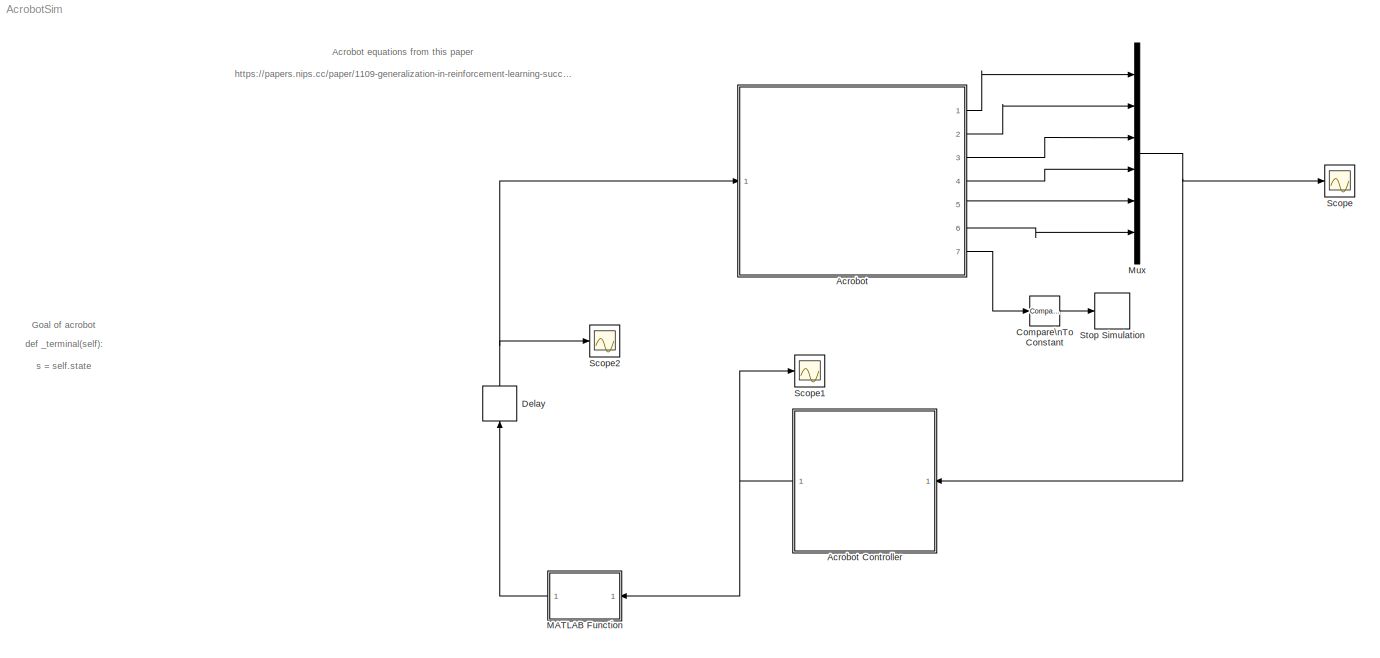
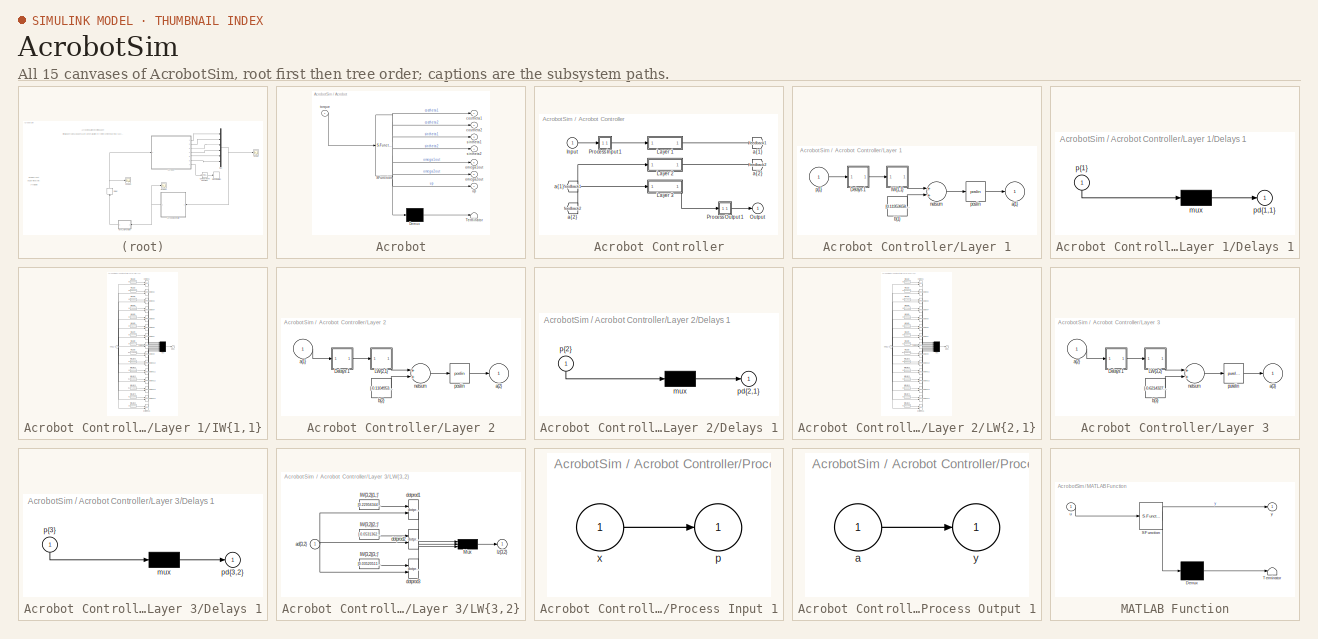
[diagram: thumbnail index - all 15 canvases of the model, root first then tree order]
MODEL AcrobotSim
KIND model
BLOCK [SubSystem] Acrobot
  ErrorFcn = Stateflow.Translate.translate
  PermitHierarchicalResolution = ExplicitOnly
  Ports = [1, 7]
  RequestExecContextInheritance = off
  SFBlockType = Chart
  SID = 269
  TreatAsAtomicUnit = on
BLOCK [SubSystem] Acrobot Controller
  Ports = [1, 1]
  RequestExecContextInheritance = off
  SID = 141
BLOCK [From] Acrobot Controller/ a{1} 
  GotoTag = feedback1
  SID = 143
BLOCK [From] Acrobot Controller/ a{2} 
  GotoTag = feedback2
  SID = 144
BLOCK [Inport] Acrobot Controller/Input
  IconDisplay = Port number
  PortDimensions = 6
  SID = 142
BLOCK [SubSystem] Acrobot Controller/Layer 1
  Ports = [1, 1]
  RequestExecContextInheritance = off
  SID = 145
BLOCK [SubSystem] Acrobot Controller/Layer 1/Delays 1
  Ports = [1, 1]
  RequestExecContextInheritance = off
  SID = 147
BLOCK [Mux] Acrobot Controller/Layer 1/Delays 1/mux
  Inputs = 1
  Ports = [1, 1]
  SID = 149
BLOCK [Outport] Acrobot Controller/Layer 1/Delays 1/pd{1,1}
  IconDisplay = Port number
  SID = 150
BLOCK [Inport] Acrobot Controller/Layer 1/Delays 1/p{1}
  IconDisplay = Port number
  PortDimensions = 6
  SID = 148
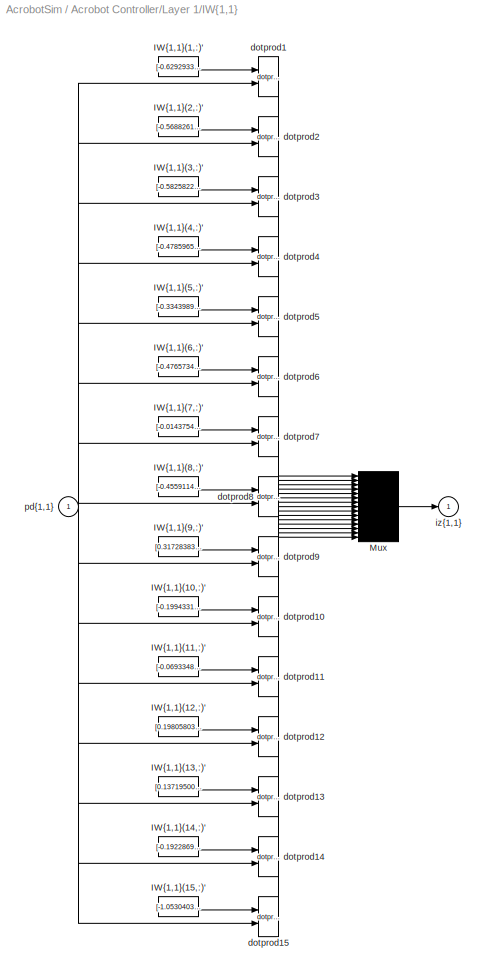
BLOCK [SubSystem] Acrobot Controller/Layer 1/IW{1,1}
  Ports = [1, 1]
  RequestExecContextInheritance = off
  SID = 151
BLOCK [Constant] Acrobot Controller/Layer 1/IW{1,1}/IW{1,1}(1,:)'
  SID = 153
  Value = [-0.629293382167816162109375;0.267541229724884033203125;0.3269827663898468017578125;0.368597507476806640625;0.6109702587127685546875;0.458549916744232177734375]
BLOCK [Constant] Acrobot Controller/Layer 1/IW{1,1}/IW{1,1}(10,:)'
  SID = 154
  Value = [-0.1994331777095794677734375;-0.34238779544830322265625;-0.581617057323455810546875;-0.17035122215747833251953125;0.3872416019439697265625;0.316810667514801025390625]
BLOCK [Constant] Acrobot Controller/Layer 1/IW{1,1}/IW{1,1}(11,:)'
  SID = 155
  Value = [-0.069334827363491058349609375;0.1552861630916595458984375;-0.327745258808135986328125;-0.085925109684467315673828125;-0.556157410144805908203125;-0.258438408374786376953125]
BLOCK [Constant] Acrobot Controller/Layer 1/IW{1,1}/IW{1,1}(12,:)'
  SID = 156
  Value = [0.1980580389499664306640625;-0.48474085330963134765625;-0.24772338569164276123046875;-0.22235150635242462158203125;-0.21169258654117584228515625;-0.15758176147937774658203125]
BLOCK [Constant] Acrobot Controller/Layer 1/IW{1,1}/IW{1,1}(13,:)'
  SID = 157
  Value = [0.13719500601291656494140625;0.339969813823699951171875;-0.4135355055332183837890625;-0.2197802364826202392578125;-0.2786084115505218505859375;-0.19249911606311798095703125]
BLOCK [Constant] Acrobot Controller/Layer 1/IW{1,1}/IW{1,1}(14,:)'
  SID = 158
  Value = [-0.192286908626556396484375;-0.3834297657012939453125;-0.202968060970306396484375;-0.4230518043041229248046875;-0.12122587859630584716796875;-0.097362987697124481201171875]
BLOCK [Constant] Acrobot Controller/Layer 1/IW{1,1}/IW{1,1}(15,:)'
  SID = 159
  Value = [-1.05304038524627685546875;0.22336471080780029296875;0.530629456043243408203125;0.23111082613468170166015625;0.5807912349700927734375;0.54090702533721923828125]
BLOCK [Constant] Acrobot Controller/Layer 1/IW{1,1}/IW{1,1}(2,:)'
  SID = 160
  Value = [-0.568826198577880859375;-0.15539298951625823974609375;-0.122105889022350311279296875;-0.2513155043125152587890625;-0.21641339361667633056640625;-0.15628679096698760986328125]
BLOCK [Constant] Acrobot Controller/Layer 1/IW{1,1}/IW{1,1}(3,:)'
  SID = 161
  Value = [-0.5825822353363037109375;0.255660355091094970703125;0.17209292948246002197265625;0.275888383388519287109375;-0.4317434132099151611328125;-0.24883510172367095947265625]
BLOCK [Constant] Acrobot Controller/Layer 1/IW{1,1}/IW{1,1}(4,:)'
  SID = 162
  Value = [-0.4785965383052825927734375;0.1283374130725860595703125;-0.092144139111042022705078125;0.013953453861176967620849609375;0.03224141895771026611328125;0.02987962402403354644775390625]
BLOCK [Constant] Acrobot Controller/Layer 1/IW{1,1}/IW{1,1}(5,:)'
  SID = 163
  Value = [-0.334398925304412841796875;0.0793269574642181396484375;-0.1643861234188079833984375;0.160010516643524169921875;-0.23555891215801239013671875;-0.1154588758945465087890625]
BLOCK [Constant] Acrobot Controller/Layer 1/IW{1,1}/IW{1,1}(6,:)'
  SID = 164
  Value = [-0.4765734970569610595703125;-0.0154970176517963409423828125;-0.12678419053554534912109375;0.0056215026415884494781494140625;-0.4483170211315155029296875;-0.0035274890251457691192626953125]
BLOCK [Constant] Acrobot Controller/Layer 1/IW{1,1}/IW{1,1}(7,:)'
  SID = 165
  Value = [-0.01437546312808990478515625;0.34442424774169921875;-1.08262574672698974609375;0.23921187222003936767578125;-0.4744389057159423828125;-0.091474987566471099853515625]
BLOCK [Constant] Acrobot Controller/Layer 1/IW{1,1}/IW{1,1}(8,:)'
  SID = 166
  Value = [-0.4559114277362823486328125;0.061258368194103240966796875;-0.22658334672451019287109375;-0.2540847957134246826171875;0.0007091395673342049121856689453125;-0.0848601758480072021484375]
BLOCK [Constant] Acrobot Controller/Layer 1/IW{1,1}/IW{1,1}(9,:)'
  SID = 167
  Value = [0.3172838389873504638671875;-0.1585173904895782470703125;0.00350333401001989841461181640625;-0.1759805977344512939453125;-0.3181124627590179443359375;-0.086401574313640594482421875]
BLOCK [Mux] Acrobot Controller/Layer 1/IW{1,1}/Mux
  Inputs = 15
  Ports = [15, 1]
  SID = 168
BLOCK [Reference] Acrobot Controller/Layer 1/IW{1,1}/dotprod1  REF=neural/Weight Functions/dotprod
  Ports = [2, 1]
  SID = 169
  SourceBlock = neural/Weight Functions/dotprod
  SourceProductBaseCode = NN
  SourceProductName = Neural Network Toolbox
  SourceType = DOTPROD
BLOCK [Reference] Acrobot Controller/Layer 1/IW{1,1}/dotprod10  REF=neural/Weight Functions/dotprod
  Ports = [2, 1]
  SID = 170
  SourceBlock = neural/Weight Functions/dotprod
  SourceProductBaseCode = NN
  SourceProductName = Neural Network Toolbox
  SourceType = DOTPROD
BLOCK [Reference] Acrobot Controller/Layer 1/IW{1,1}/dotprod11  REF=neural/Weight Functions/dotprod
  Ports = [2, 1]
  SID = 171
  SourceBlock = neural/Weight Functions/dotprod
  SourceProductBaseCode = NN
  SourceProductName = Neural Network Toolbox
  SourceType = DOTPROD
BLOCK [Reference] Acrobot Controller/Layer 1/IW{1,1}/dotprod12  REF=neural/Weight Functions/dotprod
  Ports = [2, 1]
  SID = 172
  SourceBlock = neural/Weight Functions/dotprod
  SourceProductBaseCode = NN
  SourceProductName = Neural Network Toolbox
  SourceType = DOTPROD
BLOCK [Reference] Acrobot Controller/Layer 1/IW{1,1}/dotprod13  REF=neural/Weight Functions/dotprod
  Ports = [2, 1]
  SID = 173
  SourceBlock = neural/Weight Functions/dotprod
  SourceProductBaseCode = NN
  SourceProductName = Neural Network Toolbox
  SourceType = DOTPROD
BLOCK [Reference] Acrobot Controller/Layer 1/IW{1,1}/dotprod14  REF=neural/Weight Functions/dotprod
  Ports = [2, 1]
  SID = 174
  SourceBlock = neural/Weight Functions/dotprod
  SourceProductBaseCode = NN
  SourceProductName = Neural Network Toolbox
  SourceType = DOTPROD
BLOCK [Reference] Acrobot Controller/Layer 1/IW{1,1}/dotprod15  REF=neural/Weight Functions/dotprod
  Ports = [2, 1]
  SID = 175
  SourceBlock = neural/Weight Functions/dotprod
  SourceProductBaseCode = NN
  SourceProductName = Neural Network Toolbox
  SourceType = DOTPROD
BLOCK [Reference] Acrobot Controller/Layer 1/IW{1,1}/dotprod2  REF=neural/Weight Functions/dotprod
  Ports = [2, 1]
  SID = 176
  SourceBlock = neural/Weight Functions/dotprod
  SourceProductBaseCode = NN
  SourceProductName = Neural Network Toolbox
  SourceType = DOTPROD
BLOCK [Reference] Acrobot Controller/Layer 1/IW{1,1}/dotprod3  REF=neural/Weight Functions/dotprod
  Ports = [2, 1]
  SID = 177
  SourceBlock = neural/Weight Functions/dotprod
  SourceProductBaseCode = NN
  SourceProductName = Neural Network Toolbox
  SourceType = DOTPROD
BLOCK [Reference] Acrobot Controller/Layer 1/IW{1,1}/dotprod4  REF=neural/Weight Functions/dotprod
  Ports = [2, 1]
  SID = 178
  SourceBlock = neural/Weight Functions/dotprod
  SourceProductBaseCode = NN
  SourceProductName = Neural Network Toolbox
  SourceType = DOTPROD
BLOCK [Reference] Acrobot Controller/Layer 1/IW{1,1}/dotprod5  REF=neural/Weight Functions/dotprod
  Ports = [2, 1]
  SID = 179
  SourceBlock = neural/Weight Functions/dotprod
  SourceProductBaseCode = NN
  SourceProductName = Neural Network Toolbox
  SourceType = DOTPROD
BLOCK [Reference] Acrobot Controller/Layer 1/IW{1,1}/dotprod6  REF=neural/Weight Functions/dotprod
  Ports = [2, 1]
  SID = 180
  SourceBlock = neural/Weight Functions/dotprod
  SourceProductBaseCode = NN
  SourceProductName = Neural Network Toolbox
  SourceType = DOTPROD
BLOCK [Reference] Acrobot Controller/Layer 1/IW{1,1}/dotprod7  REF=neural/Weight Functions/dotprod
  Ports = [2, 1]
  SID = 181
  SourceBlock = neural/Weight Functions/dotprod
  SourceProductBaseCode = NN
  SourceProductName = Neural Network Toolbox
  SourceType = DOTPROD
BLOCK [Reference] Acrobot Controller/Layer 1/IW{1,1}/dotprod8  REF=neural/Weight Functions/dotprod
  Ports = [2, 1]
  SID = 182
  SourceBlock = neural/Weight Functions/dotprod
  SourceProductBaseCode = NN
  SourceProductName = Neural Network Toolbox
  SourceType = DOTPROD
BLOCK [Reference] Acrobot Controller/Layer 1/IW{1,1}/dotprod9  REF=neural/Weight Functions/dotprod
  Ports = [2, 1]
  SID = 183
  SourceBlock = neural/Weight Functions/dotprod
  SourceProductBaseCode = NN
  SourceProductName = Neural Network Toolbox
  SourceType = DOTPROD
BLOCK [Outport] Acrobot Controller/Layer 1/IW{1,1}/iz{1,1}
  IconDisplay = Port number
  SID = 184
BLOCK [Inport] Acrobot Controller/Layer 1/IW{1,1}/pd{1,1}
  IconDisplay = Port number
  PortDimensions = 6
  SID = 152
BLOCK [Outport] Acrobot Controller/Layer 1/a{1}
  IconDisplay = Port number
  InitialOutput = [0;0;0;0;0;0;0;0;0;0;0;0;0;0;0]
  SID = 188
BLOCK [Constant] Acrobot Controller/Layer 1/b{1}
  SID = 185
  Value = [0.119536586105823516845703125;-0.230188548564910888671875;-0.23079194128513336181640625;-0.279725253582000732421875;-0.4099583327770233154296875;-0.49942672252655029296875;-0.4926598370075225830078125;-0.54850828647613525390625;-0.2937972247600555419921875;-0.299076020717620849609375;-0.38252937793731689453125;-0.20021300017833709716796875;-0.31963121891021728515625;-0.239465773105621337890625;0....<+24ch>
BLOCK [Sum] Acrobot Controller/Layer 1/netsum
  Inputs = 2
  Ports = [2, 1]
  SID = 186
BLOCK [Reference] Acrobot Controller/Layer 1/poslin  REF=neural/Transfer Functions/poslin
  Ports = [1, 1]
  SID = 187
  SourceBlock = neural/Transfer Functions/poslin
  SourceProductBaseCode = NN
  SourceProductName = Neural Network Toolbox
  SourceType = POSLIN
BLOCK [Inport] Acrobot Controller/Layer 1/p{1}
  IconDisplay = Port number
  PortDimensions = 6
  SID = 146
BLOCK [SubSystem] Acrobot Controller/Layer 2
  Ports = [1, 1]
  RequestExecContextInheritance = off
  SID = 189
BLOCK [SubSystem] Acrobot Controller/Layer 2/Delays 1
  Ports = [1, 1]
  RequestExecContextInheritance = off
  SID = 191
BLOCK [Mux] Acrobot Controller/Layer 2/Delays 1/mux
  Inputs = 1
  Ports = [1, 1]
  SID = 193
BLOCK [Outport] Acrobot Controller/Layer 2/Delays 1/pd{2,1}
  IconDisplay = Port number
  SID = 194
BLOCK [Inport] Acrobot Controller/Layer 2/Delays 1/p{2}
  IconDisplay = Port number
  PortDimensions = 15
  SID = 192
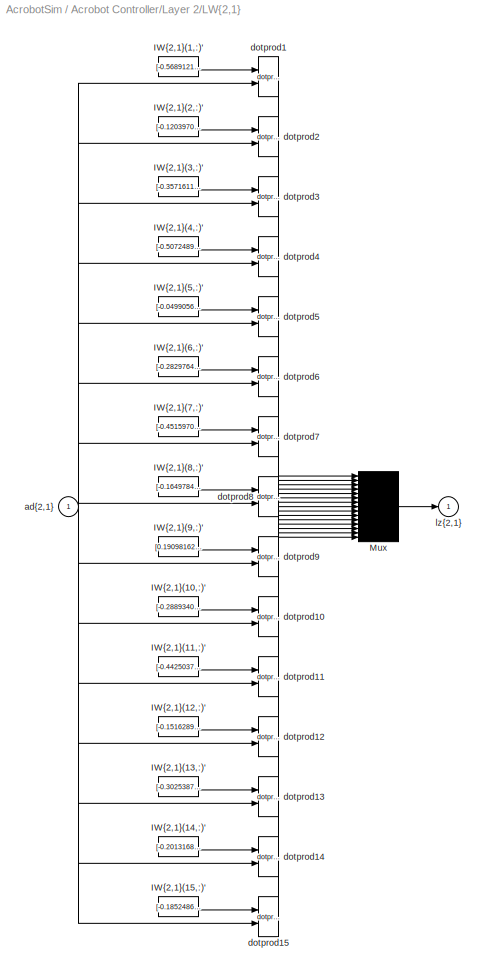
BLOCK [SubSystem] Acrobot Controller/Layer 2/LW{2,1}
  Ports = [1, 1]
  RequestExecContextInheritance = off
  SID = 195
BLOCK [Constant] Acrobot Controller/Layer 2/LW{2,1}/IW{2,1}(1,:)'
  SID = 197
  Value = [-0.56891214847564697265625;-0.02455294132232666015625;-0.22560422122478485107421875;0.35980212688446044921875;-0.060725688934326171875;-0.3810708522796630859375;0.01707655005156993865966796875;-0.282357156276702880859375;-0.16270171105861663818359375;-0.374989449977874755859375;0.449668407440185546875;-0.42087829113006591796875;-0.585381686687469482421875;-0.304477393627166748046875;0.23550938069...<+16ch>
BLOCK [Constant] Acrobot Controller/Layer 2/LW{2,1}/IW{2,1}(10,:)'
  SID = 198
  Value = [-0.288934051990509033203125;-0.29943883419036865234375;-0.3934574127197265625;-0.13735614717006683349609375;-0.3973422348499298095703125;-0.0203161723911762237548828125;-0.2869767248630523681640625;-0.1797797679901123046875;0.1843016445636749267578125;-0.18748973309993743896484375;0.22462902963161468505859375;-0.695818424224853515625;0.167788803577423095703125;-0.2690890133380889892578125;-0.3852...<+22ch>
BLOCK [Constant] Acrobot Controller/Layer 2/LW{2,1}/IW{2,1}(11,:)'
  SID = 199
  Value = [-0.4425037801265716552734375;-0.63323891162872314453125;-0.147343456745147705078125;-0.271628081798553466796875;-0.1758066117763519287109375;-0.2524290382862091064453125;-0.211986720561981201171875;-0.1917307674884796142578125;-0.3903661072254180908203125;-0.28914105892181396484375;0.137168824672698974609375;-0.1572428047657012939453125;0.113857261836528778076171875;-0.2442226111888885498046875;-...<+25ch>
BLOCK [Constant] Acrobot Controller/Layer 2/LW{2,1}/IW{2,1}(12,:)'
  SID = 200
  Value = [-0.151628911495208740234375;0.12647636234760284423828125;-0.12356962263584136962890625;0.10214702785015106201171875;0.094718225300312042236328125;0.14123825728893280029296875;-0.611776292324066162109375;-0.21375910937786102294921875;-0.463662445545196533203125;-0.03418655693531036376953125;0.2567619383335113525390625;-0.494219720363616943359375;0.09422342479228973388671875;0.044321954250335693359...<+31ch>
BLOCK [Constant] Acrobot Controller/Layer 2/LW{2,1}/IW{2,1}(13,:)'
  SID = 201
  Value = [-0.30253875255584716796875;0.294740736484527587890625;0.066961489617824554443359375;0.23260422050952911376953125;-0.12674224376678466796875;-0.28327095508575439453125;0.21342666447162628173828125;-0.1026814877986907958984375;-0.07733856141567230224609375;-0.057007730007171630859375;-0.4532323181629180908203125;-0.4870062768459320068359375;-0.0196999646723270416259765625;0.062833108007907867431640...<+35ch>
BLOCK [Constant] Acrobot Controller/Layer 2/LW{2,1}/IW{2,1}(14,:)'
  SID = 202
  Value = [-0.20131687819957733154296875;-0.02052041329443454742431640625;0.16153256595134735107421875;-0.0484607629477977752685546875;0.270292580127716064453125;-0.118401251733303070068359375;-0.078533090651035308837890625;-0.2541024386882781982421875;-0.14911194145679473876953125;-0.02696304023265838623046875;-0.428298532962799072265625;-0.3249240815639495849609375;0.20208914577960968017578125;0.130651652...<+45ch>
BLOCK [Constant] Acrobot Controller/Layer 2/LW{2,1}/IW{2,1}(15,:)'
  SID = 203
  Value = [-0.1852486431598663330078125;0.1828717887401580810546875;-0.23310436308383941650390625;-0.16968347132205963134765625;-0.31630742549896240234375;-0.12640817463397979736328125;0.0428302027285099029541015625;0.23154342174530029296875;-0.336505353450775146484375;-0.084368221461772918701171875;-0.09692813456058502197265625;-0.571092069149017333984375;-0.14088888466358184814453125;0.3132189214229583740...<+34ch>
BLOCK [Constant] Acrobot Controller/Layer 2/LW{2,1}/IW{2,1}(2,:)'
  SID = 204
  Value = [-0.120397083461284637451171875;-0.4346459209918975830078125;0.282601058483123779296875;0.465441882610321044921875;-0.21052254736423492431640625;0.057381354272365570068359375;-0.338673412799835205078125;-0.327726662158966064453125;-0.356248676776885986328125;-0.090713612735271453857421875;0.0396773479878902435302734375;-0.2426026165485382080078125;0.03200559318065643310546875;0.2251411676406860351...<+34ch>
BLOCK [Constant] Acrobot Controller/Layer 2/LW{2,1}/IW{2,1}(3,:)'
  SID = 205
  Value = [-0.3571611344814300537109375;-0.12801389396190643310546875;-0.097477711737155914306640625;0.085609517991542816162109375;0.2684865295886993408203125;0.2947237491607666015625;-0.058787651360034942626953125;-0.46142137050628662109375;-0.0409108959138393402099609375;-0.19608305394649505615234375;-0.2971037328243255615234375;-0.1382306516170501708984375;-0.015215811319649219512939453125;-0.06072067469...<+46ch>
BLOCK [Constant] Acrobot Controller/Layer 2/LW{2,1}/IW{2,1}(4,:)'
  SID = 206
  Value = [-0.507248938083648681640625;-0.3350706398487091064453125;0.1096967160701751708984375;-0.193877995014190673828125;0.3654682338237762451171875;-0.13105519115924835205078125;-0.21935923397541046142578125;0.21249835193157196044921875;0.0343544818460941314697265625;0.048413693904876708984375;0.33355033397674560546875;0.212501943111419677734375;-0.334746420383453369140625;-0.17057983577251434326171875;...<+30ch>
BLOCK [Constant] Acrobot Controller/Layer 2/LW{2,1}/IW{2,1}(5,:)'
  SID = 207
  Value = [-0.04990561306476593017578125;-0.33270633220672607421875;-0.45524561405181884765625;-0.30400407314300537109375;-0.25278055667877197265625;-0.073035843670368194580078125;0.097640134394168853759765625;-0.114749133586883544921875;-0.121306873857975006103515625;0.081083051860332489013671875;-0.38061606884002685546875;-0.365194261074066162109375;-0.047441847622394561767578125;0.32008963823318481445312...<+29ch>
BLOCK [Constant] Acrobot Controller/Layer 2/LW{2,1}/IW{2,1}(6,:)'
  SID = 208
  Value = [-0.2829764187335968017578125;-0.24875698983669281005859375;0.3737339079380035400390625;-0.190239369869232177734375;-0.16425563395023345947265625;-0.2001479566097259521484375;-5.336129106581211090087890625e-05;-0.3660942614078521728515625;-0.420340478420257568359375;0.3200995624065399169921875;0.282023012638092041015625;-0.187795579433441162109375;0.4511233270168304443359375;-0.1755170375108718872...<+37ch>
BLOCK [Constant] Acrobot Controller/Layer 2/LW{2,1}/IW{2,1}(7,:)'
  SID = 209
  Value = [-0.4515970051288604736328125;-0.14189667999744415283203125;-0.09526680409908294677734375;0.013497881591320037841796875;-0.7293975353240966796875;-0.144612371921539306640625;0.119672439992427825927734375;-0.119669295847415924072265625;-0.5189216136932373046875;0.017336972057819366455078125;-0.02152448706328868865966796875;-0.0948787629604339599609375;-0.1626017093658447265625;-0.029944220557808876...<+41ch>
BLOCK [Constant] Acrobot Controller/Layer 2/LW{2,1}/IW{2,1}(8,:)'
  SID = 210
  Value = [-0.1649784743785858154296875;0.301610171794891357421875;0.044963486492633819580078125;-0.35294020175933837890625;0.2527491748332977294921875;-0.2225630283355712890625;-0.290309488773345947265625;0.3434922993183135986328125;-0.52085459232330322265625;-0.3127934634685516357421875;-0.192056179046630859375;-0.069271385669708251953125;0.1198075711727142333984375;0.02482420019805431365966796875;0.16322...<+20ch>
BLOCK [Constant] Acrobot Controller/Layer 2/LW{2,1}/IW{2,1}(9,:)'
  SID = 211
  Value = [0.1909816265106201171875;0.06431293487548828125;-0.3291966915130615234375;0.11876539885997772216796875;0.377256929874420166015625;0.2114541828632354736328125;0.18869353830814361572265625;-0.39577233791351318359375;0.10795561969280242919921875;0.123433373868465423583984375;0.122706122696399688720703125;0.01422895677387714385986328125;-0.0163164436817169189453125;-0.00083884020568802952766418457031...<+33ch>
BLOCK [Mux] Acrobot Controller/Layer 2/LW{2,1}/Mux
  Inputs = 15
  Ports = [15, 1]
  SID = 212
BLOCK [Inport] Acrobot Controller/Layer 2/LW{2,1}/ad{2,1}
  IconDisplay = Port number
  PortDimensions = 15
  SID = 196
BLOCK [Reference] Acrobot Controller/Layer 2/LW{2,1}/dotprod1  REF=neural/Weight Functions/dotprod
  Ports = [2, 1]
  SID = 213
  SourceBlock = neural/Weight Functions/dotprod
  SourceProductBaseCode = NN
  SourceProductName = Neural Network Toolbox
  SourceType = DOTPROD
BLOCK [Reference] Acrobot Controller/Layer 2/LW{2,1}/dotprod10  REF=neural/Weight Functions/dotprod
  Ports = [2, 1]
  SID = 214
  SourceBlock = neural/Weight Functions/dotprod
  SourceProductBaseCode = NN
  SourceProductName = Neural Network Toolbox
  SourceType = DOTPROD
BLOCK [Reference] Acrobot Controller/Layer 2/LW{2,1}/dotprod11  REF=neural/Weight Functions/dotprod
  Ports = [2, 1]
  SID = 215
  SourceBlock = neural/Weight Functions/dotprod
  SourceProductBaseCode = NN
  SourceProductName = Neural Network Toolbox
  SourceType = DOTPROD
BLOCK [Reference] Acrobot Controller/Layer 2/LW{2,1}/dotprod12  REF=neural/Weight Functions/dotprod
  Ports = [2, 1]
  SID = 216
  SourceBlock = neural/Weight Functions/dotprod
  SourceProductBaseCode = NN
  SourceProductName = Neural Network Toolbox
  SourceType = DOTPROD
BLOCK [Reference] Acrobot Controller/Layer 2/LW{2,1}/dotprod13  REF=neural/Weight Functions/dotprod
  Ports = [2, 1]
  SID = 217
  SourceBlock = neural/Weight Functions/dotprod
  SourceProductBaseCode = NN
  SourceProductName = Neural Network Toolbox
  SourceType = DOTPROD
BLOCK [Reference] Acrobot Controller/Layer 2/LW{2,1}/dotprod14  REF=neural/Weight Functions/dotprod
  Ports = [2, 1]
  SID = 218
  SourceBlock = neural/Weight Functions/dotprod
  SourceProductBaseCode = NN
  SourceProductName = Neural Network Toolbox
  SourceType = DOTPROD
BLOCK [Reference] Acrobot Controller/Layer 2/LW{2,1}/dotprod15  REF=neural/Weight Functions/dotprod
  Ports = [2, 1]
  SID = 219
  SourceBlock = neural/Weight Functions/dotprod
  SourceProductBaseCode = NN
  SourceProductName = Neural Network Toolbox
  SourceType = DOTPROD
BLOCK [Reference] Acrobot Controller/Layer 2/LW{2,1}/dotprod2  REF=neural/Weight Functions/dotprod
  Ports = [2, 1]
  SID = 220
  SourceBlock = neural/Weight Functions/dotprod
  SourceProductBaseCode = NN
  SourceProductName = Neural Network Toolbox
  SourceType = DOTPROD
BLOCK [Reference] Acrobot Controller/Layer 2/LW{2,1}/dotprod3  REF=neural/Weight Functions/dotprod
  Ports = [2, 1]
  SID = 221
  SourceBlock = neural/Weight Functions/dotprod
  SourceProductBaseCode = NN
  SourceProductName = Neural Network Toolbox
  SourceType = DOTPROD
BLOCK [Reference] Acrobot Controller/Layer 2/LW{2,1}/dotprod4  REF=neural/Weight Functions/dotprod
  Ports = [2, 1]
  SID = 222
  SourceBlock = neural/Weight Functions/dotprod
  SourceProductBaseCode = NN
  SourceProductName = Neural Network Toolbox
  SourceType = DOTPROD
BLOCK [Reference] Acrobot Controller/Layer 2/LW{2,1}/dotprod5  REF=neural/Weight Functions/dotprod
  Ports = [2, 1]
  SID = 223
  SourceBlock = neural/Weight Functions/dotprod
  SourceProductBaseCode = NN
  SourceProductName = Neural Network Toolbox
  SourceType = DOTPROD
BLOCK [Reference] Acrobot Controller/Layer 2/LW{2,1}/dotprod6  REF=neural/Weight Functions/dotprod
  Ports = [2, 1]
  SID = 224
  SourceBlock = neural/Weight Functions/dotprod
  SourceProductBaseCode = NN
  SourceProductName = Neural Network Toolbox
  SourceType = DOTPROD
BLOCK [Reference] Acrobot Controller/Layer 2/LW{2,1}/dotprod7  REF=neural/Weight Functions/dotprod
  Ports = [2, 1]
  SID = 225
  SourceBlock = neural/Weight Functions/dotprod
  SourceProductBaseCode = NN
  SourceProductName = Neural Network Toolbox
  SourceType = DOTPROD
BLOCK [Reference] Acrobot Controller/Layer 2/LW{2,1}/dotprod8  REF=neural/Weight Functions/dotprod
  Ports = [2, 1]
  SID = 226
  SourceBlock = neural/Weight Functions/dotprod
  SourceProductBaseCode = NN
  SourceProductName = Neural Network Toolbox
  SourceType = DOTPROD
BLOCK [Reference] Acrobot Controller/Layer 2/LW{2,1}/dotprod9  REF=neural/Weight Functions/dotprod
  Ports = [2, 1]
  SID = 227
  SourceBlock = neural/Weight Functions/dotprod
  SourceProductBaseCode = NN
  SourceProductName = Neural Network Toolbox
  SourceType = DOTPROD
BLOCK [Outport] Acrobot Controller/Layer 2/LW{2,1}/lz{2,1}
  IconDisplay = Port number
  SID = 228
BLOCK [Inport] Acrobot Controller/Layer 2/a{1} 
  IconDisplay = Port number
  PortDimensions = 15
  SID = 190
BLOCK [Outport] Acrobot Controller/Layer 2/a{2}
  IconDisplay = Port number
  InitialOutput = [0;0;0;0;0;0;0;0;0;0;0;0;0;0;0]
  SID = 232
BLOCK [Constant] Acrobot Controller/Layer 2/b{2}
  SID = 229
  Value = [-0.110495388507843017578125;-0.163150250911712646484375;-0.0635423958301544189453125;-0.2473845779895782470703125;-0.082003705203533172607421875;0.2963710725307464599609375;-0.0047644809819757938385009765625;-0.156434535980224609375;0.85825741291046142578125;-0.11829416453838348388671875;-0.07634179294109344482421875;-0.140150249004364013671875;0.0453057996928691864013671875;-0.251593321561813354...<+38ch>
BLOCK [Sum] Acrobot Controller/Layer 2/netsum
  Inputs = 2
  Ports = [2, 1]
  SID = 230
BLOCK [Reference] Acrobot Controller/Layer 2/poslin  REF=neural/Transfer Functions/poslin
  Ports = [1, 1]
  SID = 231
  SourceBlock = neural/Transfer Functions/poslin
  SourceProductBaseCode = NN
  SourceProductName = Neural Network Toolbox
  SourceType = POSLIN
BLOCK [SubSystem] Acrobot Controller/Layer 3
  Ports = [1, 1]
  RequestExecContextInheritance = off
  SID = 233
BLOCK [SubSystem] Acrobot Controller/Layer 3/Delays 1
  Ports = [1, 1]
  RequestExecContextInheritance = off
  SID = 235
BLOCK [Mux] Acrobot Controller/Layer 3/Delays 1/mux
  Inputs = 1
  Ports = [1, 1]
  SID = 237
BLOCK [Outport] Acrobot Controller/Layer 3/Delays 1/pd{3,2}
  IconDisplay = Port number
  SID = 238
BLOCK [Inport] Acrobot Controller/Layer 3/Delays 1/p{3}
  IconDisplay = Port number
  PortDimensions = 15
  SID = 236
BLOCK [SubSystem] Acrobot Controller/Layer 3/LW{3,2}
  Ports = [1, 1]
  RequestExecContextInheritance = off
  SID = 239
BLOCK [Constant] Acrobot Controller/Layer 3/LW{3,2}/IW{3,2}(1,:)'
  SID = 241
  Value = [0.2295634448528289794921875;0.10494937002658843994140625;-0.459014713764190673828125;0.0195766575634479522705078125;-0.136528193950653076171875;-0.4578566849231719970703125;-0.2689321339130401611328125;-0.527595102787017822265625;-0.189240515232086181640625;-0.4336407482624053955078125;-0.16425402462482452392578125;-0.13460363447666168212890625;-0.400546014308929443359375;0.0176497623324394226074...<+36ch>
BLOCK [Constant] Acrobot Controller/Layer 3/LW{3,2}/IW{3,2}(2,:)'
  SID = 242
  Value = [-0.0531362108886241912841796875;0.2847653925418853759765625;0.2467294037342071533203125;0.0444325506687164306640625;-0.507038533687591552734375;0.050516538321971893310546875;0.0601825006306171417236328125;-0.194980621337890625;0.0318470783531665802001953125;-0.06831951439380645751953125;-0.13217389583587646484375;0.0009420257993042469024658203125;-0.297533094882965087890625;0.05849127098917961120...<+37ch>
BLOCK [Constant] Acrobot Controller/Layer 3/LW{3,2}/IW{3,2}(3,:)'
  SID = 243
  Value = [0.035205118358135223388671875;0.0417473502457141876220703125;0.23265744745731353759765625;0.22557233273983001708984375;-0.02426497824490070343017578125;-0.01859543286263942718505859375;0.101007439196109771728515625;0.122162573039531707763671875;-0.88361155986785888671875;-0.491617739200592041015625;0.102315463125705718994140625;0.21148215234279632568359375;-0.00580346770584583282470703125;0.09393...<+51ch>
BLOCK [Mux] Acrobot Controller/Layer 3/LW{3,2}/Mux
  Inputs = 3
  Ports = [3, 1]
  SID = 244
BLOCK [Inport] Acrobot Controller/Layer 3/LW{3,2}/ad{3,2}
  IconDisplay = Port number
  PortDimensions = 15
  SID = 240
BLOCK [Reference] Acrobot Controller/Layer 3/LW{3,2}/dotprod1  REF=neural/Weight Functions/dotprod
  Ports = [2, 1]
  SID = 245
  SourceBlock = neural/Weight Functions/dotprod
  SourceProductBaseCode = NN
  SourceProductName = Neural Network Toolbox
  SourceType = DOTPROD
BLOCK [Reference] Acrobot Controller/Layer 3/LW{3,2}/dotprod2  REF=neural/Weight Functions/dotprod
  Ports = [2, 1]
  SID = 246
  SourceBlock = neural/Weight Functions/dotprod
  SourceProductBaseCode = NN
  SourceProductName = Neural Network Toolbox
  SourceType = DOTPROD
BLOCK [Reference] Acrobot Controller/Layer 3/LW{3,2}/dotprod3  REF=neural/Weight Functions/dotprod
  Ports = [2, 1]
  SID = 247
  SourceBlock = neural/Weight Functions/dotprod
  SourceProductBaseCode = NN
  SourceProductName = Neural Network Toolbox
  SourceType = DOTPROD
BLOCK [Outport] Acrobot Controller/Layer 3/LW{3,2}/lz{3,2}
  IconDisplay = Port number
  SID = 248
BLOCK [Inport] Acrobot Controller/Layer 3/a{2} 
  IconDisplay = Port number
  PortDimensions = 15
  SID = 234
BLOCK [Outport] Acrobot Controller/Layer 3/a{3}
  IconDisplay = Port number
  InitialOutput = [0;0;0]
  SID = 252
BLOCK [Constant] Acrobot Controller/Layer 3/b{3}
  SID = 249
  Value = [-0.621432721614837646484375;-0.006797295995056629180908203125;-0.192039072513580322265625]
BLOCK [Sum] Acrobot Controller/Layer 3/netsum
  Inputs = 2
  Ports = [2, 1]
  SID = 250
BLOCK [Reference] Acrobot Controller/Layer 3/purelin  REF=neural/Transfer Functions/purelin
  Ports = [1, 1]
  SID = 251
  SourceBlock = neural/Transfer Functions/purelin
  SourceProductBaseCode = NN
  SourceProductName = Neural Network Toolbox
  SourceType = PURELIN
BLOCK [Outport] Acrobot Controller/Output
  IconDisplay = Port number
  InitialOutput = [0;0;0]
  SID = 261
BLOCK [SubSystem] Acrobot Controller/Process Input 1
  Ports = [1, 1]
  RequestExecContextInheritance = off
  SID = 253
BLOCK [Outport] Acrobot Controller/Process Input 1/p
  IconDisplay = Port number
  PortDimensions = 6
  SID = 255
BLOCK [Inport] Acrobot Controller/Process Input 1/x
  IconDisplay = Port number
  PortDimensions = 6
  SID = 254
BLOCK [SubSystem] Acrobot Controller/Process Output 1
  Ports = [1, 1]
  RequestExecContextInheritance = off
  SID = 256
BLOCK [Inport] Acrobot Controller/Process Output 1/a
  IconDisplay = Port number
  PortDimensions = 3
  SID = 257
BLOCK [Outport] Acrobot Controller/Process Output 1/y
  IconDisplay = Port number
  PortDimensions = 3
  SID = 258
BLOCK [Goto] Acrobot Controller/a{1}
  GotoTag = feedback1
  SID = 259
BLOCK [Goto] Acrobot Controller/a{2}
  GotoTag = feedback2
  SID = 260
BLOCK [Demux] Acrobot/ Demux 
  Outputs = 1
  Ports = [1, 1]
  SID = 269::90
BLOCK [S-Function] Acrobot/ SFunction 
  EnableBusSupport = on
  FunctionName = sf_sfun
  PortCounts = [1 8]
  Ports = [1, 8]
  SFcnIsStateOwnerBlock = off
  SFunctionDeploymentMode = off
  SID = 269::89
  Tag = Stateflow S-Function AcrobotSim 1
BLOCK [Terminator] Acrobot/ Terminator 
  SID = 269::91
BLOCK [Outport] Acrobot/costheta1
  IconDisplay = Port number
  SID = 269::94
BLOCK [Outport] Acrobot/costheta2
  IconDisplay = Port number
  Port = 2
  SID = 269::95
BLOCK [Outport] Acrobot/omega1out
  IconDisplay = Port number
  Port = 5
  SID = 269::99
BLOCK [Outport] Acrobot/omega2out
  IconDisplay = Port number
  Port = 6
  SID = 269::100
BLOCK [Outport] Acrobot/sintheta1
  IconDisplay = Port number
  Port = 3
  SID = 269::96
BLOCK [Outport] Acrobot/sintheta2
  IconDisplay = Port number
  Port = 4
  SID = 269::98
BLOCK [Inport] Acrobot/torque
  IconDisplay = Port number
  SID = 269::93
BLOCK [Outport] Acrobot/up
  IconDisplay = Port number
  Port = 7
  SID = 269::105
BLOCK [Reference] Compare\nTo Constant  REF=simulink/Logic and Bit\nOperations/Compare\nTo Constant
  OutDataTypeStr = boolean
  Ports = [1, 1]
  SID = 273
  SourceBlock = simulink/Logic and Bit\nOperations/Compare\nTo Constant
  SourceProductBaseCode = SL
  SourceProductName = Simulink
  SourceType = Compare To Constant
  ZeroCross = on
  const = 1.0
  relop = >
BLOCK [Delay] Delay
  DelayLength = 1
  InitialCondition = 0
  InputPortMap = u0
  InputProcessing = Inherited
  Ports = [1, 1]
  SID = 132
BLOCK [SubSystem] MATLAB Function
  ErrorFcn = Stateflow.Translate.translate
  PermitHierarchicalResolution = ExplicitOnly
  Ports = [1, 1]
  RequestExecContextInheritance = off
  SFBlockType = MATLAB Function
  SID = 133
  TreatAsAtomicUnit = on
BLOCK [Demux] MATLAB Function/ Demux 
  Outputs = 1
  Ports = [1, 1]
  SID = 133::20
BLOCK [S-Function] MATLAB Function/ SFunction 
  EnableBusSupport = on
  FunctionName = sf_sfun
  PortCounts = [1 2]
  Ports = [1, 2]
  SFcnIsStateOwnerBlock = off
  SFunctionDeploymentMode = off
  SID = 133::19
  Tag = Stateflow S-Function AcrobotSim 2
BLOCK [Terminator] MATLAB Function/ Terminator 
  SID = 133::21
BLOCK [Inport] MATLAB Function/u
  IconDisplay = Port number
  SID = 133::1
BLOCK [Outport] MATLAB Function/y
  IconDisplay = Port number
  SID = 133::5
BLOCK [Mux] Mux
  DisplayOption = bar
  Inputs = 6
  Ports = [6, 1]
  SID = 131
BLOCK [Scope] Scope
  Floating = off
  NumInputPorts = 1
  Ports = [1]
  SID = 134
  ScopeSpecificationString = Simulink.scopes.TimeScopeBlockCfg('CurrentConfiguration', extmgr.ConfigurationSet(extmgr.Configuration('Core','General UI',true),extmgr.Configuration('Core','Source UI',true),extmgr.Configuration('Sources','WiredSimulink',true),extmgr.Configuration('Visuals','Time Domain',true,'SerializedDisplays',{struct('MinYLimReal','-2.73415','MaxYLimReal','1.66225','YLabelReal','','MinYLimMag','0.00000','MaxY...<+1651ch>
BLOCK [Scope] Scope1
  Floating = off
  NumInputPorts = 1
  Ports = [1]
  SID = 138
  ScopeSpecificationString = Simulink.scopes.TimeScopeBlockCfg('CurrentConfiguration', extmgr.ConfigurationSet(extmgr.Configuration('Core','General UI',true),extmgr.Configuration('Core','Source UI',true),extmgr.Configuration('Sources','WiredSimulink',true,'DataLoggingVariableName','ScopeData1'),extmgr.Configuration('Visuals','Time Domain',true,'SerializedDisplays',{struct('MinYLimReal','-1.65863','MaxYLimReal','0.22792','YLab...<+1590ch>
BLOCK [Scope] Scope2
  Floating = off
  NumInputPorts = 1
  Ports = [1]
  SID = 139
  ScopeSpecificationString = Simulink.scopes.TimeScopeBlockCfg('CurrentConfiguration', extmgr.ConfigurationSet(extmgr.Configuration('Core','General UI',true),extmgr.Configuration('Core','Source UI',true),extmgr.Configuration('Sources','WiredSimulink',true,'DataLoggingVariableName','ScopeData2'),extmgr.Configuration('Visuals','Time Domain',true,'SerializedDisplays',{struct('MinYLimReal','-1.25','MaxYLimReal','1.25','YLabelReal...<+1514ch>
BLOCK [Stop] Stop Simulation
  SID = 272
ANNOTATION (root): \n \n def _terminal(self): \n s = self.state \n return bool(-np.cos(s[0]) - np.cos(s[1] + s[0]) > 1.)
ANNOTATION (root): \n \n Goal of acrobot
ANNOTATION (root): \n \n Acrobot equations from this paper \n https://papers.nips.cc/paper/1109-generalization-in-reinforcement-learning-successful-examples-using-sparse-coarse-coding.pdf
LINE Acrobot Controller/ a{1} :1 -> Acrobot Controller/Layer 2:1
LINE Acrobot Controller/ a{2} :1 -> Acrobot Controller/Layer 3:1
LINE Acrobot Controller/Input:1 -> Acrobot Controller/Process Input 1:1
LINE Acrobot Controller/Layer 1/Delays 1/mux:1 -> Acrobot Controller/Layer 1/Delays 1/pd{1,1}:1
LINE Acrobot Controller/Layer 1/Delays 1/p{1}:1 -> Acrobot Controller/Layer 1/Delays 1/mux:1
LINE Acrobot Controller/Layer 1/Delays 1:1 -> Acrobot Controller/Layer 1/IW{1,1}:1
LINE Acrobot Controller/Layer 1/IW{1,1}/IW{1,1}(1,:)':1 -> Acrobot Controller/Layer 1/IW{1,1}/dotprod1:1
LINE Acrobot Controller/Layer 1/IW{1,1}/IW{1,1}(10,:)':1 -> Acrobot Controller/Layer 1/IW{1,1}/dotprod10:1
LINE Acrobot Controller/Layer 1/IW{1,1}/IW{1,1}(11,:)':1 -> Acrobot Controller/Layer 1/IW{1,1}/dotprod11:1
LINE Acrobot Controller/Layer 1/IW{1,1}/IW{1,1}(12,:)':1 -> Acrobot Controller/Layer 1/IW{1,1}/dotprod12:1
LINE Acrobot Controller/Layer 1/IW{1,1}/IW{1,1}(13,:)':1 -> Acrobot Controller/Layer 1/IW{1,1}/dotprod13:1
LINE Acrobot Controller/Layer 1/IW{1,1}/IW{1,1}(14,:)':1 -> Acrobot Controller/Layer 1/IW{1,1}/dotprod14:1
LINE Acrobot Controller/Layer 1/IW{1,1}/IW{1,1}(15,:)':1 -> Acrobot Controller/Layer 1/IW{1,1}/dotprod15:1
LINE Acrobot Controller/Layer 1/IW{1,1}/IW{1,1}(2,:)':1 -> Acrobot Controller/Layer 1/IW{1,1}/dotprod2:1
LINE Acrobot Controller/Layer 1/IW{1,1}/IW{1,1}(3,:)':1 -> Acrobot Controller/Layer 1/IW{1,1}/dotprod3:1
LINE Acrobot Controller/Layer 1/IW{1,1}/IW{1,1}(4,:)':1 -> Acrobot Controller/Layer 1/IW{1,1}/dotprod4:1
LINE Acrobot Controller/Layer 1/IW{1,1}/IW{1,1}(5,:)':1 -> Acrobot Controller/Layer 1/IW{1,1}/dotprod5:1
LINE Acrobot Controller/Layer 1/IW{1,1}/IW{1,1}(6,:)':1 -> Acrobot Controller/Layer 1/IW{1,1}/dotprod6:1
LINE Acrobot Controller/Layer 1/IW{1,1}/IW{1,1}(7,:)':1 -> Acrobot Controller/Layer 1/IW{1,1}/dotprod7:1
LINE Acrobot Controller/Layer 1/IW{1,1}/IW{1,1}(8,:)':1 -> Acrobot Controller/Layer 1/IW{1,1}/dotprod8:1
LINE Acrobot Controller/Layer 1/IW{1,1}/IW{1,1}(9,:)':1 -> Acrobot Controller/Layer 1/IW{1,1}/dotprod9:1
LINE Acrobot Controller/Layer 1/IW{1,1}/Mux:1 -> Acrobot Controller/Layer 1/IW{1,1}/iz{1,1}:1
LINE Acrobot Controller/Layer 1/IW{1,1}/dotprod10:1 -> Acrobot Controller/Layer 1/IW{1,1}/Mux:10
LINE Acrobot Controller/Layer 1/IW{1,1}/dotprod11:1 -> Acrobot Controller/Layer 1/IW{1,1}/Mux:11
LINE Acrobot Controller/Layer 1/IW{1,1}/dotprod12:1 -> Acrobot Controller/Layer 1/IW{1,1}/Mux:12
LINE Acrobot Controller/Layer 1/IW{1,1}/dotprod13:1 -> Acrobot Controller/Layer 1/IW{1,1}/Mux:13
LINE Acrobot Controller/Layer 1/IW{1,1}/dotprod14:1 -> Acrobot Controller/Layer 1/IW{1,1}/Mux:14
LINE Acrobot Controller/Layer 1/IW{1,1}/dotprod15:1 -> Acrobot Controller/Layer 1/IW{1,1}/Mux:15
LINE Acrobot Controller/Layer 1/IW{1,1}/dotprod1:1 -> Acrobot Controller/Layer 1/IW{1,1}/Mux:1
LINE Acrobot Controller/Layer 1/IW{1,1}/dotprod2:1 -> Acrobot Controller/Layer 1/IW{1,1}/Mux:2
LINE Acrobot Controller/Layer 1/IW{1,1}/dotprod3:1 -> Acrobot Controller/Layer 1/IW{1,1}/Mux:3
LINE Acrobot Controller/Layer 1/IW{1,1}/dotprod4:1 -> Acrobot Controller/Layer 1/IW{1,1}/Mux:4
LINE Acrobot Controller/Layer 1/IW{1,1}/dotprod5:1 -> Acrobot Controller/Layer 1/IW{1,1}/Mux:5
LINE Acrobot Controller/Layer 1/IW{1,1}/dotprod6:1 -> Acrobot Controller/Layer 1/IW{1,1}/Mux:6
LINE Acrobot Controller/Layer 1/IW{1,1}/dotprod7:1 -> Acrobot Controller/Layer 1/IW{1,1}/Mux:7
LINE Acrobot Controller/Layer 1/IW{1,1}/dotprod8:1 -> Acrobot Controller/Layer 1/IW{1,1}/Mux:8
LINE Acrobot Controller/Layer 1/IW{1,1}/dotprod9:1 -> Acrobot Controller/Layer 1/IW{1,1}/Mux:9
NET Acrobot Controller/Layer 1/IW{1,1}/pd{1,1}:1 -> Acrobot Controller/Layer 1/IW{1,1}/dotprod10:2, Acrobot Controller/Layer 1/IW{1,1}/dotprod11:2, Acrobot Controller/Layer 1/IW{1,1}/dotprod12:2, Acrobot Controller/Layer 1/IW{1,1}/dotprod13:2, Acrobot Controller/Layer 1/IW{1,1}/dotprod14:2, Acrobot Controller/Layer 1/IW{1,1}/dotprod15:2, Acrobot Controller/Layer 1/IW{1,1}/dotprod1:2, Acrobot Controller/Layer 1/IW{1,1}/dotprod2:2, Acrobot Controller/Layer 1/IW{1,1}/dotprod3:2, Acrobot Controller/Layer 1/IW{1,1}/dotprod4:2, Acrobot Controller/Layer 1/IW{1,1}/dotprod5:2, Acrobot Controller/Layer 1/IW{1,1}/dotprod6:2, Acrobot Controller/Layer 1/IW{1,1}/dotprod7:2, Acrobot Controller/Layer 1/IW{1,1}/dotprod8:2, Acrobot Controller/Layer 1/IW{1,1}/dotprod9:2
LINE Acrobot Controller/Layer 1/IW{1,1}:1 -> Acrobot Controller/Layer 1/netsum:1
LINE Acrobot Controller/Layer 1/b{1}:1 -> Acrobot Controller/Layer 1/netsum:2
LINE Acrobot Controller/Layer 1/netsum:1 -> Acrobot Controller/Layer 1/poslin:1
LINE Acrobot Controller/Layer 1/poslin:1 -> Acrobot Controller/Layer 1/a{1}:1
LINE Acrobot Controller/Layer 1/p{1}:1 -> Acrobot Controller/Layer 1/Delays 1:1
LINE Acrobot Controller/Layer 1:1 -> Acrobot Controller/a{1}:1
LINE Acrobot Controller/Layer 2/Delays 1/mux:1 -> Acrobot Controller/Layer 2/Delays 1/pd{2,1}:1
LINE Acrobot Controller/Layer 2/Delays 1/p{2}:1 -> Acrobot Controller/Layer 2/Delays 1/mux:1
LINE Acrobot Controller/Layer 2/Delays 1:1 -> Acrobot Controller/Layer 2/LW{2,1}:1
LINE Acrobot Controller/Layer 2/LW{2,1}/IW{2,1}(1,:)':1 -> Acrobot Controller/Layer 2/LW{2,1}/dotprod1:1
LINE Acrobot Controller/Layer 2/LW{2,1}/IW{2,1}(10,:)':1 -> Acrobot Controller/Layer 2/LW{2,1}/dotprod10:1
LINE Acrobot Controller/Layer 2/LW{2,1}/IW{2,1}(11,:)':1 -> Acrobot Controller/Layer 2/LW{2,1}/dotprod11:1
LINE Acrobot Controller/Layer 2/LW{2,1}/IW{2,1}(12,:)':1 -> Acrobot Controller/Layer 2/LW{2,1}/dotprod12:1
LINE Acrobot Controller/Layer 2/LW{2,1}/IW{2,1}(13,:)':1 -> Acrobot Controller/Layer 2/LW{2,1}/dotprod13:1
LINE Acrobot Controller/Layer 2/LW{2,1}/IW{2,1}(14,:)':1 -> Acrobot Controller/Layer 2/LW{2,1}/dotprod14:1
LINE Acrobot Controller/Layer 2/LW{2,1}/IW{2,1}(15,:)':1 -> Acrobot Controller/Layer 2/LW{2,1}/dotprod15:1
LINE Acrobot Controller/Layer 2/LW{2,1}/IW{2,1}(2,:)':1 -> Acrobot Controller/Layer 2/LW{2,1}/dotprod2:1
LINE Acrobot Controller/Layer 2/LW{2,1}/IW{2,1}(3,:)':1 -> Acrobot Controller/Layer 2/LW{2,1}/dotprod3:1
LINE Acrobot Controller/Layer 2/LW{2,1}/IW{2,1}(4,:)':1 -> Acrobot Controller/Layer 2/LW{2,1}/dotprod4:1
LINE Acrobot Controller/Layer 2/LW{2,1}/IW{2,1}(5,:)':1 -> Acrobot Controller/Layer 2/LW{2,1}/dotprod5:1
LINE Acrobot Controller/Layer 2/LW{2,1}/IW{2,1}(6,:)':1 -> Acrobot Controller/Layer 2/LW{2,1}/dotprod6:1
LINE Acrobot Controller/Layer 2/LW{2,1}/IW{2,1}(7,:)':1 -> Acrobot Controller/Layer 2/LW{2,1}/dotprod7:1
LINE Acrobot Controller/Layer 2/LW{2,1}/IW{2,1}(8,:)':1 -> Acrobot Controller/Layer 2/LW{2,1}/dotprod8:1
LINE Acrobot Controller/Layer 2/LW{2,1}/IW{2,1}(9,:)':1 -> Acrobot Controller/Layer 2/LW{2,1}/dotprod9:1
LINE Acrobot Controller/Layer 2/LW{2,1}/Mux:1 -> Acrobot Controller/Layer 2/LW{2,1}/lz{2,1}:1
NET Acrobot Controller/Layer 2/LW{2,1}/ad{2,1}:1 -> Acrobot Controller/Layer 2/LW{2,1}/dotprod10:2, Acrobot Controller/Layer 2/LW{2,1}/dotprod11:2, Acrobot Controller/Layer 2/LW{2,1}/dotprod12:2, Acrobot Controller/Layer 2/LW{2,1}/dotprod13:2, Acrobot Controller/Layer 2/LW{2,1}/dotprod14:2, Acrobot Controller/Layer 2/LW{2,1}/dotprod15:2, Acrobot Controller/Layer 2/LW{2,1}/dotprod1:2, Acrobot Controller/Layer 2/LW{2,1}/dotprod2:2, Acrobot Controller/Layer 2/LW{2,1}/dotprod3:2, Acrobot Controller/Layer 2/LW{2,1}/dotprod4:2, Acrobot Controller/Layer 2/LW{2,1}/dotprod5:2, Acrobot Controller/Layer 2/LW{2,1}/dotprod6:2, Acrobot Controller/Layer 2/LW{2,1}/dotprod7:2, Acrobot Controller/Layer 2/LW{2,1}/dotprod8:2, Acrobot Controller/Layer 2/LW{2,1}/dotprod9:2
LINE Acrobot Controller/Layer 2/LW{2,1}/dotprod10:1 -> Acrobot Controller/Layer 2/LW{2,1}/Mux:10
LINE Acrobot Controller/Layer 2/LW{2,1}/dotprod11:1 -> Acrobot Controller/Layer 2/LW{2,1}/Mux:11
LINE Acrobot Controller/Layer 2/LW{2,1}/dotprod12:1 -> Acrobot Controller/Layer 2/LW{2,1}/Mux:12
LINE Acrobot Controller/Layer 2/LW{2,1}/dotprod13:1 -> Acrobot Controller/Layer 2/LW{2,1}/Mux:13
LINE Acrobot Controller/Layer 2/LW{2,1}/dotprod14:1 -> Acrobot Controller/Layer 2/LW{2,1}/Mux:14
LINE Acrobot Controller/Layer 2/LW{2,1}/dotprod15:1 -> Acrobot Controller/Layer 2/LW{2,1}/Mux:15
LINE Acrobot Controller/Layer 2/LW{2,1}/dotprod1:1 -> Acrobot Controller/Layer 2/LW{2,1}/Mux:1
LINE Acrobot Controller/Layer 2/LW{2,1}/dotprod2:1 -> Acrobot Controller/Layer 2/LW{2,1}/Mux:2
LINE Acrobot Controller/Layer 2/LW{2,1}/dotprod3:1 -> Acrobot Controller/Layer 2/LW{2,1}/Mux:3
LINE Acrobot Controller/Layer 2/LW{2,1}/dotprod4:1 -> Acrobot Controller/Layer 2/LW{2,1}/Mux:4
LINE Acrobot Controller/Layer 2/LW{2,1}/dotprod5:1 -> Acrobot Controller/Layer 2/LW{2,1}/Mux:5
LINE Acrobot Controller/Layer 2/LW{2,1}/dotprod6:1 -> Acrobot Controller/Layer 2/LW{2,1}/Mux:6
LINE Acrobot Controller/Layer 2/LW{2,1}/dotprod7:1 -> Acrobot Controller/Layer 2/LW{2,1}/Mux:7
LINE Acrobot Controller/Layer 2/LW{2,1}/dotprod8:1 -> Acrobot Controller/Layer 2/LW{2,1}/Mux:8
LINE Acrobot Controller/Layer 2/LW{2,1}/dotprod9:1 -> Acrobot Controller/Layer 2/LW{2,1}/Mux:9
LINE Acrobot Controller/Layer 2/LW{2,1}:1 -> Acrobot Controller/Layer 2/netsum:1
LINE Acrobot Controller/Layer 2/a{1} :1 -> Acrobot Controller/Layer 2/Delays 1:1
LINE Acrobot Controller/Layer 2/b{2}:1 -> Acrobot Controller/Layer 2/netsum:2
LINE Acrobot Controller/Layer 2/netsum:1 -> Acrobot Controller/Layer 2/poslin:1
LINE Acrobot Controller/Layer 2/poslin:1 -> Acrobot Controller/Layer 2/a{2}:1
LINE Acrobot Controller/Layer 2:1 -> Acrobot Controller/a{2}:1
LINE Acrobot Controller/Layer 3/Delays 1/mux:1 -> Acrobot Controller/Layer 3/Delays 1/pd{3,2}:1
LINE Acrobot Controller/Layer 3/Delays 1/p{3}:1 -> Acrobot Controller/Layer 3/Delays 1/mux:1
LINE Acrobot Controller/Layer 3/Delays 1:1 -> Acrobot Controller/Layer 3/LW{3,2}:1
LINE Acrobot Controller/Layer 3/LW{3,2}/IW{3,2}(1,:)':1 -> Acrobot Controller/Layer 3/LW{3,2}/dotprod1:1
LINE Acrobot Controller/Layer 3/LW{3,2}/IW{3,2}(2,:)':1 -> Acrobot Controller/Layer 3/LW{3,2}/dotprod2:1
LINE Acrobot Controller/Layer 3/LW{3,2}/IW{3,2}(3,:)':1 -> Acrobot Controller/Layer 3/LW{3,2}/dotprod3:1
LINE Acrobot Controller/Layer 3/LW{3,2}/Mux:1 -> Acrobot Controller/Layer 3/LW{3,2}/lz{3,2}:1
NET Acrobot Controller/Layer 3/LW{3,2}/ad{3,2}:1 -> Acrobot Controller/Layer 3/LW{3,2}/dotprod1:2, Acrobot Controller/Layer 3/LW{3,2}/dotprod2:2, Acrobot Controller/Layer 3/LW{3,2}/dotprod3:2
LINE Acrobot Controller/Layer 3/LW{3,2}/dotprod1:1 -> Acrobot Controller/Layer 3/LW{3,2}/Mux:1
LINE Acrobot Controller/Layer 3/LW{3,2}/dotprod2:1 -> Acrobot Controller/Layer 3/LW{3,2}/Mux:2
LINE Acrobot Controller/Layer 3/LW{3,2}/dotprod3:1 -> Acrobot Controller/Layer 3/LW{3,2}/Mux:3
LINE Acrobot Controller/Layer 3/LW{3,2}:1 -> Acrobot Controller/Layer 3/netsum:1
LINE Acrobot Controller/Layer 3/a{2} :1 -> Acrobot Controller/Layer 3/Delays 1:1
LINE Acrobot Controller/Layer 3/b{3}:1 -> Acrobot Controller/Layer 3/netsum:2
LINE Acrobot Controller/Layer 3/netsum:1 -> Acrobot Controller/Layer 3/purelin:1
LINE Acrobot Controller/Layer 3/purelin:1 -> Acrobot Controller/Layer 3/a{3}:1
LINE Acrobot Controller/Layer 3:1 -> Acrobot Controller/Process Output 1:1
LINE Acrobot Controller/Process Input 1/x:1 -> Acrobot Controller/Process Input 1/p:1
LINE Acrobot Controller/Process Input 1:1 -> Acrobot Controller/Layer 1:1
LINE Acrobot Controller/Process Output 1/a:1 -> Acrobot Controller/Process Output 1/y:1
LINE Acrobot Controller/Process Output 1:1 -> Acrobot Controller/Output:1
NET Acrobot Controller:1 -> MATLAB Function:1, Scope1:1
LINE Acrobot/ Demux :1 -> Acrobot/ Terminator :1
LINE Acrobot/ SFunction :1 -> Acrobot/ Demux :1
LINE Acrobot/ SFunction :2 -> Acrobot/costheta1:1
LINE Acrobot/ SFunction :3 -> Acrobot/costheta2:1
LINE Acrobot/ SFunction :4 -> Acrobot/sintheta1:1
LINE Acrobot/ SFunction :5 -> Acrobot/sintheta2:1
LINE Acrobot/ SFunction :6 -> Acrobot/omega1out:1
LINE Acrobot/ SFunction :7 -> Acrobot/omega2out:1
LINE Acrobot/ SFunction :8 -> Acrobot/up:1
LINE Acrobot/torque:1 -> Acrobot/ SFunction :1
LINE Acrobot:1 -> Mux:1
LINE Acrobot:2 -> Mux:2
LINE Acrobot:3 -> Mux:3
LINE Acrobot:4 -> Mux:4
LINE Acrobot:5 -> Mux:5
LINE Acrobot:6 -> Mux:6
LINE Acrobot:7 -> Compare\nTo Constant:1
LINE Compare\nTo Constant:1 -> Stop Simulation:1
NET Delay:1 -> Acrobot:1, Scope2:1
LINE MATLAB Function/ Demux :1 -> MATLAB Function/ Terminator :1
LINE MATLAB Function/ SFunction :1 -> MATLAB Function/ Demux :1
LINE MATLAB Function/ SFunction :2 -> MATLAB Function/y:1
LINE MATLAB Function/u:1 -> MATLAB Function/ SFunction :1
LINE MATLAB Function:1 -> Delay:1
NET Mux:1 -> Acrobot Controller:1, Scope:1
note: NET lines group one-source signal fan-out (src -> all destinations, sorted); 1:1 wires keep LINE
CHART Acrobot states=1 transitions=1
  STATE_LABEL 'Acrobot\\nen:\\n%CONSTANTS\\nl1 = 1; %length of link 1\\nl2 = 1; %length of link 2\\nm1 = 1; %mass of link 1\\nm2 = 1; %mass of link 2\\nlc1 = 0.5; %position of center of mass of link 1\\nlc2 = 0.5; %position of center of mass of link 2\\nmoi = 1; %moments of inertia for both links\\nmax_v1 = 4*pi; %Max velocity link 1\\nmax_v2 = 9*pi; %Max velocity link 2\\ng = 9.8; %gravity constant\\n%EQUATIONS\\ndu:\\n% d1 =...<+1896ch>'
CHART MATLAB Function states=1 transitions=1
  STATE_LABEL 'eML_blk_kernel()'
